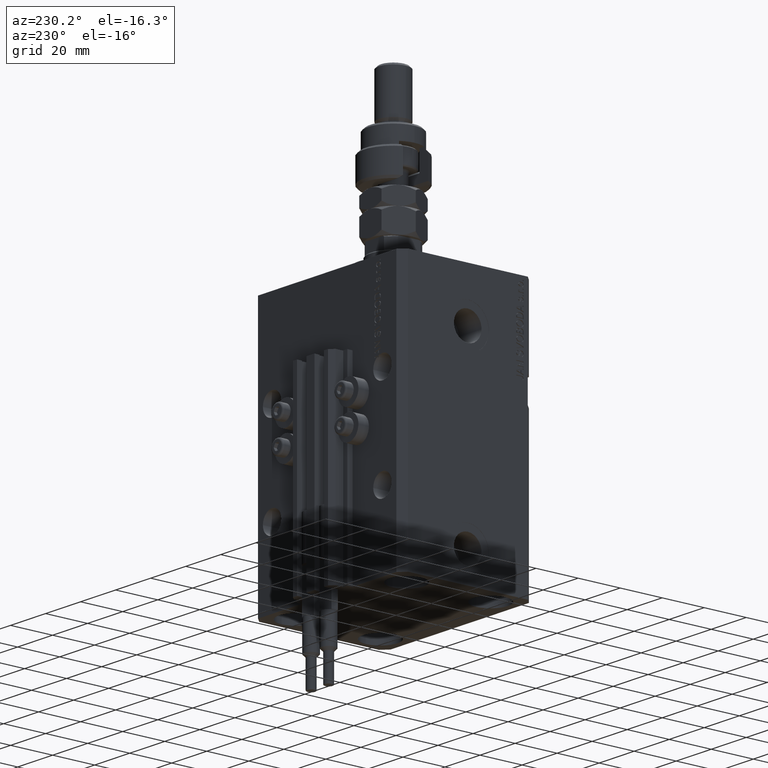
[diagram: clean part render]
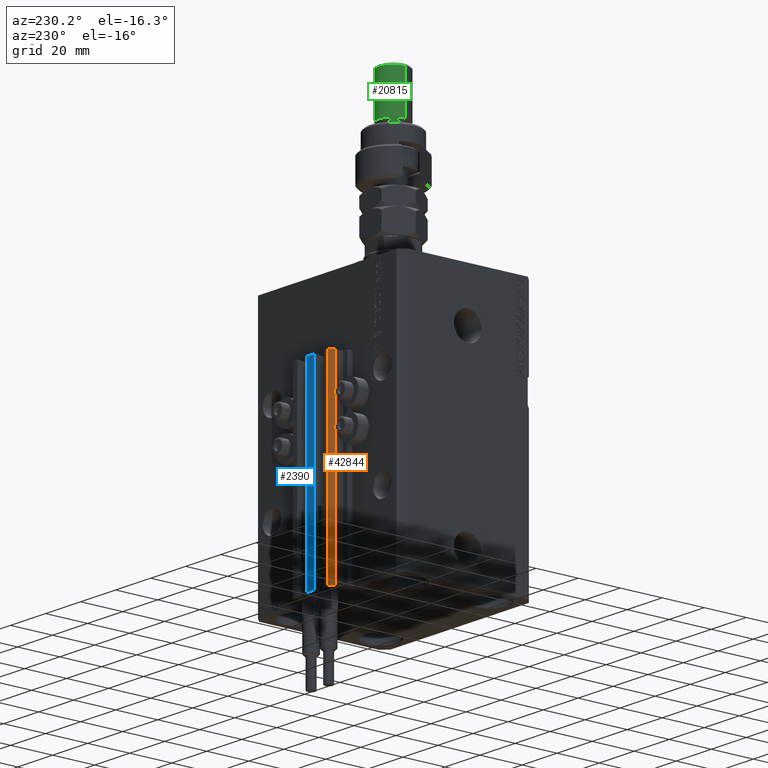
[diagram: same view with three faces highlighted in distinct colors, each labeled with its STEP entity id]
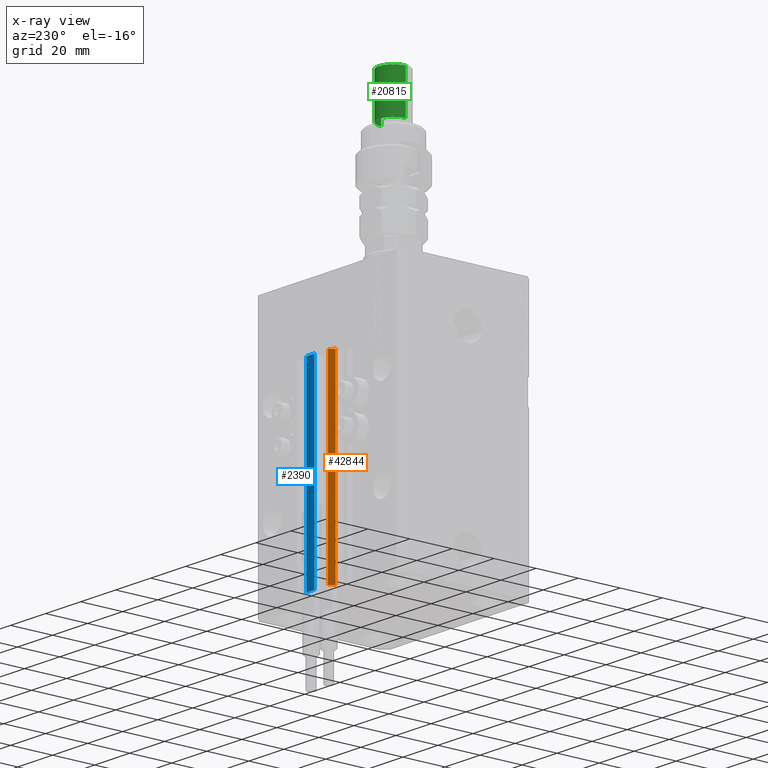
[diagram: x-ray of the same camera — body ghosted, the three highlighted faces saturated]
A machine part, auxiliary view with three faces highlighted in distinct colors.
The next image is the same camera in x-ray (body ghosted, the three faces saturated) — at least one of them is partly hidden behind the body in this view.
Their STEP definitions:

[orange] entity #42844 — the highlighted planar face has unit normal (-0.7071, 0.7071, 0).
#564 = CARTESIAN_POINT ( 'NONE',  ( -10.00000000000000000, 39.49999999999999289, -123.0000000000000000 ) ) ;
#692 = PLANE ( 'NONE',  #5550 ) ;
#5550 = AXIS2_PLACEMENT_3D ( 'NONE', #40982, #37303, #21081 ) ;
#7192 = EDGE_CURVE ( 'NONE', #37148, #24194, #22991, .T. ) ;
#7301 = EDGE_LOOP ( 'NONE', ( #15805, #23328, #50465, #30230 ) ) ;
#7756 = VERTEX_POINT ( 'NONE', #564 ) ;
#9202 = LINE ( 'NONE', #17064, #18939 ) ;
#11715 = CARTESIAN_POINT ( 'NONE',  ( -12.00000000000000000, 37.49999999999999289, -123.0000000000000000 ) ) ;
#15805 = ORIENTED_EDGE ( 'NONE', *, *, #43729, .F. ) ;
#17064 = CARTESIAN_POINT ( 'NONE',  ( -10.00000000000000000, 39.49999999999999289, -33.00000000000000000 ) ) ;
#18939 = VECTOR ( 'NONE', #25175, 999.9999999999998863 ) ;
#18972 = VERTEX_POINT ( 'NONE', #26430 ) ;
#19847 = DIRECTION ( 'NONE',  ( 0.000000000000000000, 0.000000000000000000, 1.000000000000000000 ) ) ;
#21081 = DIRECTION ( 'NONE',  ( -0.7071067811865472397, -0.7071067811865479058, 0.000000000000000000 ) ) ;
#22371 = LINE ( 'NONE', #51145, #39948 ) ;
#22991 = LINE ( 'NONE', #11715, #38699 ) ;
#23328 = ORIENTED_EDGE ( 'NONE', *, *, #49678, .F. ) ;
#24194 = VERTEX_POINT ( 'NONE', #43475 ) ;
#25008 = FACE_OUTER_BOUND ( 'NONE', #7301, .T. ) ;
#25175 = DIRECTION ( 'NONE',  ( -0.7071067811865472397, -0.7071067811865479058, 0.000000000000000000 ) ) ;
#25472 = CARTESIAN_POINT ( 'NONE',  ( -10.00000000000000000, 39.49999999999999289, -123.0000000000000000 ) ) ;
#26430 = CARTESIAN_POINT ( 'NONE',  ( -10.00000000000000000, 39.49999999999999289, -33.00000000000000000 ) ) ;
#28217 = VECTOR ( 'NONE', #41451, 999.9999999999998863 ) ;
#30230 = ORIENTED_EDGE ( 'NONE', *, *, #7192, .T. ) ;
#33317 = LINE ( 'NONE', #25472, #28217 ) ;
#37148 = VERTEX_POINT ( 'NONE', #42209 ) ;
#37303 = DIRECTION ( 'NONE',  ( -0.7071067811865479058, 0.7071067811865472397, 0.000000000000000000 ) ) ;
#38335 = DIRECTION ( 'NONE',  ( 0.000000000000000000, 0.000000000000000000, 1.000000000000000000 ) ) ;
#38699 = VECTOR ( 'NONE', #19847, 1000.000000000000000 ) ;
#39948 = VECTOR ( 'NONE', #38335, 1000.000000000000000 ) ;
#40982 = CARTESIAN_POINT ( 'NONE',  ( -10.00000000000000000, 39.49999999999999289, -123.0000000000000000 ) ) ;
#41451 = DIRECTION ( 'NONE',  ( -0.7071067811865472397, -0.7071067811865479058, 0.000000000000000000 ) ) ;
#42209 = CARTESIAN_POINT ( 'NONE',  ( -12.00000000000000000, 37.49999999999999289, -123.0000000000000000 ) ) ;
#42844 = ADVANCED_FACE ( 'NONE', ( #25008 ), #692, .T. ) ;
#43475 = CARTESIAN_POINT ( 'NONE',  ( -12.00000000000000000, 37.49999999999999289, -33.00000000000000000 ) ) ;
#43729 = EDGE_CURVE ( 'NONE', #18972, #24194, #9202, .T. ) ;
#49027 = EDGE_CURVE ( 'NONE', #7756, #37148, #33317, .T. ) ;
#49678 = EDGE_CURVE ( 'NONE', #7756, #18972, #22371, .T. ) ;
#50465 = ORIENTED_EDGE ( 'NONE', *, *, #49027, .T. ) ;
#51145 = CARTESIAN_POINT ( 'NONE',  ( -10.00000000000000000, 39.49999999999999289, -123.0000000000000000 ) ) ;

[blue] entity #2390 — the highlighted planar face has unit normal (0, -1, 0).
#2390 = ADVANCED_FACE ( 'NONE', ( #49143 ), #23991, .F. ) ;
#3018 = VECTOR ( 'NONE', #34641, 1000.000000000000000 ) ;
#4548 = CARTESIAN_POINT ( 'NONE',  ( -2.350000000000003642, 39.50000000000000711, -123.0000000000000000 ) ) ;
#6344 = EDGE_CURVE ( 'NONE', #23712, #37012, #15632, .T. ) ;
#6807 = ORIENTED_EDGE ( 'NONE', *, *, #16685, .F. ) ;
#7158 = CARTESIAN_POINT ( 'NONE',  ( -2.350000000000003642, 39.50000000000000711, -123.0000000000000000 ) ) ;
#7166 = VERTEX_POINT ( 'NONE', #11209 ) ;
#7415 = DIRECTION ( 'NONE',  ( 1.000000000000000000, 0.000000000000000000, 0.000000000000000000 ) ) ;
#9693 = DIRECTION ( 'NONE',  ( 0.000000000000000000, 0.000000000000000000, 1.000000000000000000 ) ) ;
#10193 = CARTESIAN_POINT ( 'NONE',  ( -2.350000000000003642, 39.50000000000000711, -123.0000000000000000 ) ) ;
#11209 = CARTESIAN_POINT ( 'NONE',  ( 2.349999999999999645, 39.50000000000000711, -123.0000000000000000 ) ) ;
#12059 = VECTOR ( 'NONE', #9693, 1000.000000000000000 ) ;
#12209 = DIRECTION ( 'NONE',  ( 0.000000000000000000, -0.000000000000000000, -1.000000000000000000 ) ) ;
#12568 = ORIENTED_EDGE ( 'NONE', *, *, #39681, .T. ) ;
#15118 = CARTESIAN_POINT ( 'NONE',  ( -2.350000000000003642, 39.50000000000000711, -33.00000000000000000 ) ) ;
#15632 = LINE ( 'NONE', #15118, #17745 ) ;
#16669 = EDGE_CURVE ( 'NONE', #7166, #37012, #18175, .T. ) ;
#16685 = EDGE_CURVE ( 'NONE', #18509, #7166, #46702, .T. ) ;
#17745 = VECTOR ( 'NONE', #47848, 1000.000000000000000 ) ;
#18175 = LINE ( 'NONE', #50368, #3018 ) ;
#18509 = VERTEX_POINT ( 'NONE', #4548 ) ;
#20040 = EDGE_LOOP ( 'NONE', ( #47608, #44464, #6807, #12568 ) ) ;
#20856 = CARTESIAN_POINT ( 'NONE',  ( -2.350000000000003642, 39.50000000000000711, -123.0000000000000000 ) ) ;
#23712 = VERTEX_POINT ( 'NONE', #24817 ) ;
#23991 = PLANE ( 'NONE',  #41891 ) ;
#24424 = CARTESIAN_POINT ( 'NONE',  ( 2.349999999999999645, 39.50000000000000711, -33.00000000000000000 ) ) ;
#24521 = DIRECTION ( 'NONE',  ( 0.000000000000000000, -1.000000000000000000, 0.000000000000000000 ) ) ;
#24817 = CARTESIAN_POINT ( 'NONE',  ( -2.350000000000003642, 39.50000000000000711, -33.00000000000000000 ) ) ;
#32257 = VECTOR ( 'NONE', #7415, 1000.000000000000000 ) ;
#34030 = LINE ( 'NONE', #10193, #12059 ) ;
#34641 = DIRECTION ( 'NONE',  ( 0.000000000000000000, 0.000000000000000000, 1.000000000000000000 ) ) ;
#37012 = VERTEX_POINT ( 'NONE', #24424 ) ;
#39681 = EDGE_CURVE ( 'NONE', #18509, #23712, #34030, .T. ) ;
#41891 = AXIS2_PLACEMENT_3D ( 'NONE', #20856, #24521, #12209 ) ;
#44464 = ORIENTED_EDGE ( 'NONE', *, *, #16669, .F. ) ;
#46702 = LINE ( 'NONE', #7158, #32257 ) ;
#47608 = ORIENTED_EDGE ( 'NONE', *, *, #6344, .T. ) ;
#47848 = DIRECTION ( 'NONE',  ( 1.000000000000000000, 0.000000000000000000, 0.000000000000000000 ) ) ;
#49143 = FACE_OUTER_BOUND ( 'NONE', #20040, .T. ) ;
#50368 = CARTESIAN_POINT ( 'NONE',  ( 2.349999999999999645, 39.50000000000000711, -123.0000000000000000 ) ) ;

[green] entity #20815 — the highlighted cylindrical surface (edge-blend (fillet) strip) has radius 7 mm, axis along (-0, -0, -1).
#672 = DIRECTION ( 'NONE',  ( -0.000000000000000000, -0.000000000000000000, -1.000000000000000000 ) ) ;
#928 = CARTESIAN_POINT ( 'NONE',  ( 7.000000000000000000, 8.572527594031473190E-16, 46.00000000000000000 ) ) ;
#4587 = LINE ( 'NONE', #928, #23707 ) ;
#4789 = DIRECTION ( 'NONE',  ( -1.000000000000000000, 0.000000000000000000, 0.000000000000000000 ) ) ;
#9066 = EDGE_CURVE ( 'NONE', #11112, #49439, #4587, .T. ) ;
#11112 = VERTEX_POINT ( 'NONE', #42769 ) ;
#11417 = DIRECTION ( 'NONE',  ( 1.000000000000000000, 0.000000000000000000, 0.000000000000000000 ) ) ;
#11589 = CARTESIAN_POINT ( 'NONE',  ( -7.000000000000000000, 0.000000000000000000, 24.99999999999998934 ) ) ;
#11612 = EDGE_LOOP ( 'NONE', ( #17956, #19024, #25523, #16069 ) ) ;
#16031 = DIRECTION ( 'NONE',  ( -0.000000000000000000, -0.000000000000000000, -1.000000000000000000 ) ) ;
#16069 = ORIENTED_EDGE ( 'NONE', *, *, #48746, .F. ) ;
#16624 = CARTESIAN_POINT ( 'NONE',  ( 0.000000000000000000, 0.000000000000000000, 44.99999999999999289 ) ) ;
#17956 = ORIENTED_EDGE ( 'NONE', *, *, #27153, .T. ) ;
#19024 = ORIENTED_EDGE ( 'NONE', *, *, #9066, .T. ) ;
#19210 = AXIS2_PLACEMENT_3D ( 'NONE', #16624, #25012, #31806 ) ;
#20044 = CARTESIAN_POINT ( 'NONE',  ( 7.000000000000000000, 8.572527594031473190E-16, 24.99999999999998934 ) ) ;
#20815 = ADVANCED_FACE ( 'NONE', ( #21274 ), #41167, .T. ) ;
#20910 = CIRCLE ( 'NONE', #19210, 7.000000000000000000 ) ;
#21274 = FACE_OUTER_BOUND ( 'NONE', #11612, .T. ) ;
#23211 = DIRECTION ( 'NONE',  ( -0.000000000000000000, -0.000000000000000000, 1.000000000000000000 ) ) ;
#23707 = VECTOR ( 'NONE', #672, 1000.000000000000000 ) ;
#24423 = CARTESIAN_POINT ( 'NONE',  ( -7.000000000000000000, 0.000000000000000000, 46.00000000000000000 ) ) ;
#25012 = DIRECTION ( 'NONE',  ( 0.000000000000000000, 0.000000000000000000, -1.000000000000000000 ) ) ;
#25523 = ORIENTED_EDGE ( 'NONE', *, *, #46073, .T. ) ;
#25738 = AXIS2_PLACEMENT_3D ( 'NONE', #48498, #33298, #4789 ) ;
#26381 = VERTEX_POINT ( 'NONE', #27371 ) ;
#27153 = EDGE_CURVE ( 'NONE', #26381, #11112, #20910, .T. ) ;
#27371 = CARTESIAN_POINT ( 'NONE',  ( -7.000000000000000000, 0.000000000000000000, 44.99999999999999289 ) ) ;
#27483 = VERTEX_POINT ( 'NONE', #11589 ) ;
#31806 = DIRECTION ( 'NONE',  ( 1.000000000000000000, 0.000000000000000000, 0.000000000000000000 ) ) ;
#31829 = CARTESIAN_POINT ( 'NONE',  ( 0.000000000000000000, 0.000000000000000000, 24.99999999999998934 ) ) ;
#33298 = DIRECTION ( 'NONE',  ( -0.000000000000000000, -0.000000000000000000, -1.000000000000000000 ) ) ;
#39907 = VECTOR ( 'NONE', #16031, 1000.000000000000000 ) ;
#40795 = CIRCLE ( 'NONE', #43276, 7.000000000000000000 ) ;
#41167 = CYLINDRICAL_SURFACE ( 'NONE', #25738, 7.000000000000000000 ) ;
#42769 = CARTESIAN_POINT ( 'NONE',  ( 7.000000000000000000, 8.572527594031473190E-16, 44.99999999999999289 ) ) ;
#43276 = AXIS2_PLACEMENT_3D ( 'NONE', #31829, #23211, #11417 ) ;
#43809 = LINE ( 'NONE', #24423, #39907 ) ;
#46073 = EDGE_CURVE ( 'NONE', #49439, #27483, #40795, .T. ) ;
#48498 = CARTESIAN_POINT ( 'NONE',  ( 0.000000000000000000, 0.000000000000000000, 46.00000000000000000 ) ) ;
#48746 = EDGE_CURVE ( 'NONE', #26381, #27483, #43809, .T. ) ;
#49439 = VERTEX_POINT ( 'NONE', #20044 ) ;